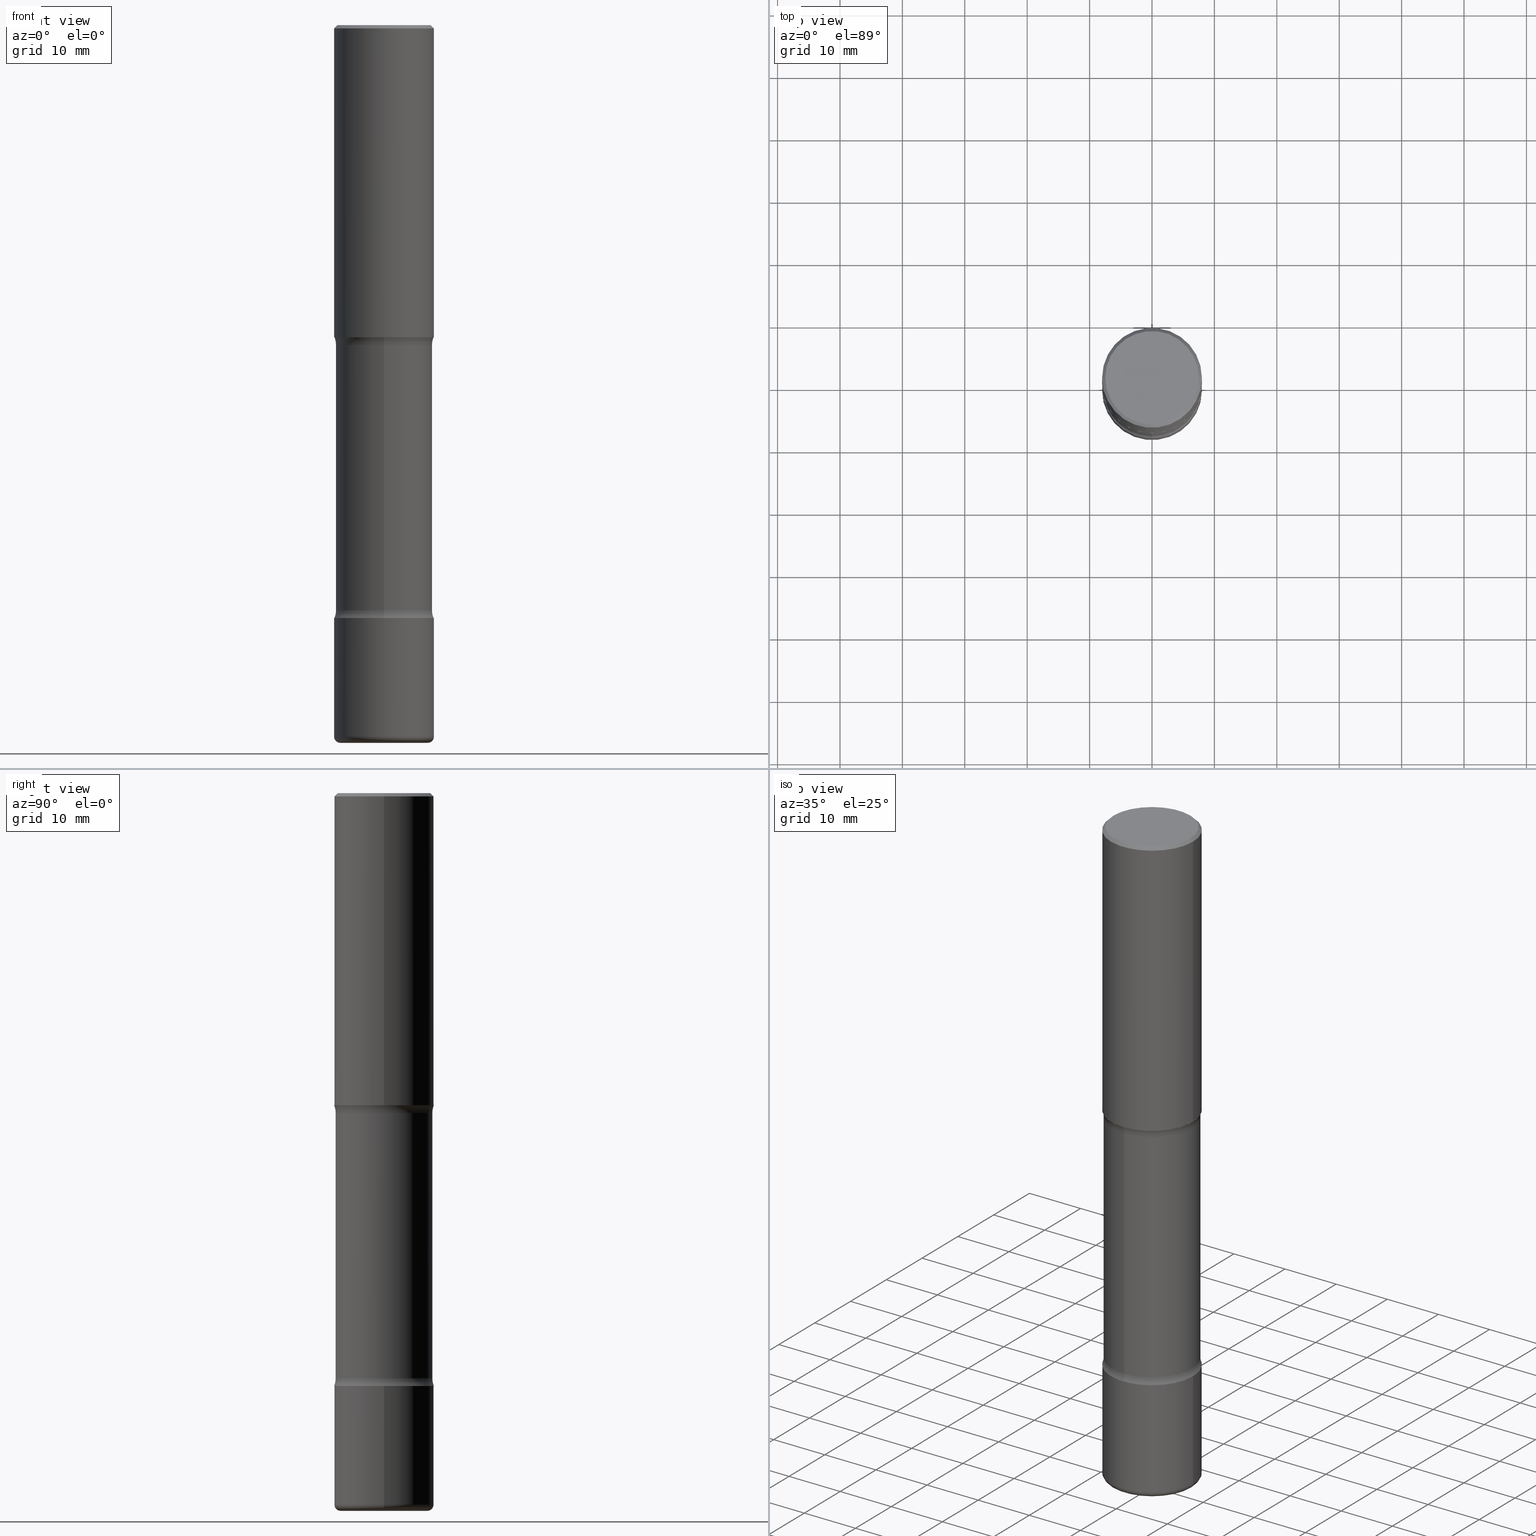
[diagram: canonical four-view strip — front | top / right | iso, engineering-drawing reading convention]
A machine part, canonical four-view strip (front | top / right | iso — engineering-drawing reading convention). The complete STEP part file that produces these views, byte-faithful:
ISO-10303-21;
HEADER;
FILE_DESCRIPTION (( 'STEP AP203' ),
    '1' );
FILE_NAME ('46830.STEP',
    '2024-03-02T05:39:50',
    ( '' ),
    ( '' ),
    'SwSTEP 2.0',
    'SolidWorks 2023',
    '' );
FILE_SCHEMA (( 'CONFIG_CONTROL_DESIGN' ));
ENDSEC;

DATA;
#1 = AXIS2_PLACEMENT_3D ( 'NONE', #250, #40, #155 ) ;
#2 = DIMENSIONAL_EXPONENTS ( 1.000000000000000000, 0.000000000000000000, 0.000000000000000000, 0.000000000000000000, 0.000000000000000000, 0.000000000000000000, 0.000000000000000000 ) ;
#3 = CC_DESIGN_DATE_AND_TIME_ASSIGNMENT ( #532, #485, ( #24 ) ) ;
#4 = DIRECTION ( 'NONE',  ( 6.982962677686265922E-15, 1.000000000000000000, -3.400504350852260021E-15 ) ) ;
#5 = CC_DESIGN_DATE_AND_TIME_ASSIGNMENT ( #7, #85, ( #306 ) ) ;
#6 = EDGE_CURVE ( 'NONE', #537, #237, #458, .T. ) ;
#7 = DATE_AND_TIME ( #89, #422 ) ;
#8 = APPROVAL_PERSON_ORGANIZATION ( #317, #388, #312 ) ;
#9 = FACE_OUTER_BOUND ( 'NONE', #151, .T. ) ;
#10 = EDGE_LOOP ( 'NONE', ( #78, #230, #474, #191 ) ) ;
#11 = APPROVAL_DATE_TIME ( #145, #80 ) ;
#12 = ORIENTED_EDGE ( 'NONE', *, *, #153, .T. ) ;
#13 = ORIENTED_EDGE ( 'NONE', *, *, #6, .T. ) ;
#14 = DIRECTION ( 'NONE',  ( 0.000000000000000000, 0.000000000000000000, 1.000000000000000000 ) ) ;
#15 = CARTESIAN_POINT ( 'NONE',  ( 0.3149499999999998967, -2.230543471175006266E-15, -0.02000000000000006981 ) ) ;
#16 = MECHANICAL_CONTEXT ( 'NONE', #326, 'mechanical' ) ;
#17 = CIRCLE ( 'NONE', #523, 0.2755500000000001837 ) ;
#18 = AXIS2_PLACEMENT_3D ( 'NONE', #327, #142, #297 ) ;
#19 = ORIENTED_EDGE ( 'NONE', *, *, #295, .T. ) ;
#20 = PRODUCT_DEFINITION_SHAPE ( 'NONE', 'NONE',  #24 ) ;
#21 = ORIENTED_EDGE ( 'NONE', *, *, #522, .F. ) ;
#22 = ORIENTED_EDGE ( 'NONE', *, *, #305, .F. ) ;
#23 = CARTESIAN_POINT ( 'NONE',  ( -2.160713844398098792E-15, -0.3149500000000073907, -1.968499999999999028 ) ) ;
#24 = PRODUCT_DEFINITION ( 'UNKNOWN', '', #432, #245 ) ;
#25 = ORIENTED_EDGE ( 'NONE', *, *, #141, .T. ) ;
#26 = AXIS2_PLACEMENT_3D ( 'NONE', #68, #425, #70 ) ;
#27 = AXIS2_PLACEMENT_3D ( 'NONE', #401, #135, #350 ) ;
#28 = FACE_OUTER_BOUND ( 'NONE', #456, .T. ) ;
#29 = FACE_OUTER_BOUND ( 'NONE', #459, .T. ) ;
#30 = VERTEX_POINT ( 'NONE', #450 ) ;
#31 = DIRECTION ( 'NONE',  ( 1.000000000000000000, -6.982962677686264344E-15, 0.000000000000000000 ) ) ;
#32 = CARTESIAN_POINT ( 'NONE',  ( -0.3149500000000000632, -1.343261219871936869E-14, -4.488199999999999967 ) ) ;
#33 = AXIS2_PLACEMENT_3D ( 'NONE', #338, #427, #391 ) ;
#34 = AXIS2_PLACEMENT_3D ( 'NONE', #467, #299, #251 ) ;
#35 = EDGE_CURVE ( 'NONE', #313, #215, #45, .T. ) ;
#36 = DIRECTION ( 'NONE',  ( -2.445468806185136597E-29, 3.491481338843145583E-15, 1.000000000000000000 ) ) ;
#37 = CIRCLE ( 'NONE', #504, 0.3149499999999998967 ) ;
#38 = FACE_OUTER_BOUND ( 'NONE', #394, .T. ) ;
#39 = ORIENTED_EDGE ( 'NONE', *, *, #480, .F. ) ;
#40 = DIRECTION ( 'NONE',  ( -2.445468806185136597E-29, 3.491481338843145583E-15, 1.000000000000000000 ) ) ;
#41 = LINE ( 'NONE', #393, #361 ) ;
#42 = VERTEX_POINT ( 'NONE', #60 ) ;
#43 = APPROVAL_STATUS ( 'not_yet_approved' ) ;
#44 = ADVANCED_FACE ( 'NONE', ( #239 ), #551, .F. ) ;
#45 = CIRCLE ( 'NONE', #112, 0.3149500000000003408 ) ;
#46 = DIRECTION ( 'NONE',  ( 1.000000000000000000, -6.982962677686269866E-15, 0.000000000000000000 ) ) ;
#47 = TOROIDAL_SURFACE ( 'NONE', #369, 0.4300000000000000488, 0.1250000000000000278 ) ;
#48 = DIRECTION ( 'NONE',  ( 1.000000000000000000, -6.982962677686263555E-15, 4.883557194083111780E-29 ) ) ;
#49 = EDGE_CURVE ( 'NONE', #537, #215, #143, .T. ) ;
#50 = FACE_OUTER_BOUND ( 'NONE', #168, .T. ) ;
#51 = CIRCLE ( 'NONE', #316, 0.3149500000000002298 ) ;
#52 = DIRECTION ( 'NONE',  ( 2.508997697352003204E-29, -3.400504350852260021E-15, -1.000000000000000000 ) ) ;
#53 =( NAMED_UNIT ( * ) PLANE_ANGLE_UNIT ( ) SI_UNIT ( $, .RADIAN. ) );
#54 = CALENDAR_DATE ( 2024, 2, 3 ) ;
#55 = CARTESIAN_POINT ( 'NONE',  ( 4.838038961945526824E-29, -7.180209988345925109E-15, -2.017372256956274423 ) ) ;
#56 = DIRECTION ( 'NONE',  ( 2.508997697352003204E-29, -3.400504350852260021E-15, -1.000000000000000000 ) ) ;
#57 = ORIENTED_EDGE ( 'NONE', *, *, #368, .T. ) ;
#58 = CIRCLE ( 'NONE', #452, 0.1250000000000000278 ) ;
#59 = TOROIDAL_SURFACE ( 'NONE', #484, 0.4299999999999999378, 0.1250000000000000000 ) ;
#60 = CARTESIAN_POINT ( 'NONE',  ( -0.2949499999999998234, 2.094539655171994135E-15, 1.280553747028670770E-17 ) ) ;
#61 = DIRECTION ( 'NONE',  ( -2.445468806185136597E-29, 3.491481338843145583E-15, 1.000000000000000000 ) ) ;
#62 = CARTESIAN_POINT ( 'NONE',  ( 1.107210456688382298E-28, -1.580803090974622389E-14, -4.527599999999999625 ) ) ;
#63 = VERTEX_POINT ( 'NONE', #335 ) ;
#64 = AXIS2_PLACEMENT_3D ( 'NONE', #240, #244, #417 ) ;
#65 = CC_DESIGN_SECURITY_CLASSIFICATION ( #306, ( #432 ) ) ;
#66 = ORIENTED_EDGE ( 'NONE', *, *, #201, .F. ) ;
#67 = PLANE ( 'NONE',  #438 ) ;
#68 = CARTESIAN_POINT ( 'NONE',  ( -0.2755500000000002392, -1.371256603660884731E-14, -4.488199999999999967 ) ) ;
#69 = CARTESIAN_POINT ( 'NONE',  ( 9.023922048725964423E-29, -1.289264818112535948E-14, -3.691327743043727239 ) ) ;
#70 = DIRECTION ( 'NONE',  ( -1.000000000000000000, 7.105427357601014480E-15, 0.000000000000000000 ) ) ;
#71 = DIRECTION ( 'NONE',  ( 2.508997697352003204E-29, -3.400504350852260021E-15, -1.000000000000000000 ) ) ;
#72 = VERTEX_POINT ( 'NONE', #15 ) ;
#73 = DIRECTION ( 'NONE',  ( -6.982962677686265922E-15, -1.000000000000000000, 3.400504350852260021E-15 ) ) ;
#74 = ADVANCED_FACE ( 'NONE', ( #535 ), #67, .F. ) ;
#75 = AXIS2_PLACEMENT_3D ( 'NONE', #248, #429, #510 ) ;
#76 = CIRCLE ( 'NONE', #403, 0.3149499999999998967 ) ;
#77 = CARTESIAN_POINT ( 'NONE',  ( 3.002673951405142333E-15, 0.4299999999999927769, -2.017372256956275756 ) ) ;
#78 = ORIENTED_EDGE ( 'NONE', *, *, #247, .F. ) ;
#79 = MANIFOLD_SOLID_BREP ( 'Body-Move/Copy2[1]', #488 ) ;
#80 = APPROVAL ( #277, 'UNSPECIFIED' ) ;
#81 = MANIFOLD_SOLID_BREP ( 'Body-Move/Copy2[2]', #290 ) ;
#82 = CARTESIAN_POINT ( 'NONE',  ( 2.059624841783562880E-15, 0.2949499999999998234, -1.023409652156634547E-15 ) ) ;
#83 = EDGE_LOOP ( 'NONE', ( #538, #496, #12, #99 ) ) ;
#84 = FACE_OUTER_BOUND ( 'NONE', #329, .T. ) ;
#85 = DATE_TIME_ROLE ( 'classification_date' ) ;
#86 = CIRCLE ( 'NONE', #159, 0.3149500000000001743 ) ;
#87 = EDGE_CURVE ( 'NONE', #92, #63, #179, .T. ) ;
#88 = LINE ( 'NONE', #266, #448 ) ;
#89 = CALENDAR_DATE ( 2024, 2, 3 ) ;
#90 = PERSON_AND_ORGANIZATION ( #323, #104 ) ;
#91 = APPROVAL_STATUS ( 'not_yet_approved' ) ;
#92 = VERTEX_POINT ( 'NONE', #214 ) ;
#93 = ADVANCED_FACE ( 'NONE', ( #29 ), #204, .T. ) ;
#94 = ADVANCED_FACE ( 'NONE', ( #38 ), #163, .T. ) ;
#95 = AXIS2_PLACEMENT_3D ( 'NONE', #55, #283, #232 ) ;
#96 = ORIENTED_EDGE ( 'NONE', *, *, #399, .F. ) ;
#97 = PERSON_AND_ORGANIZATION ( #323, #104 ) ;
#98 = APPROVAL ( #91, 'UNSPECIFIED' ) ;
#99 = ORIENTED_EDGE ( 'NONE', *, *, #35, .T. ) ;
#100 = PERSON_AND_ORGANIZATION ( #323, #104 ) ;
#101 = CARTESIAN_POINT ( 'NONE',  ( 4.701351208495103638E-29, -7.034164945136184012E-15, -1.968500000000000139 ) ) ;
#102 = CIRCLE ( 'NONE', #533, 0.3149500000000003408 ) ;
#103 = DIRECTION ( 'NONE',  ( 6.982962677686265922E-15, 1.000000000000000000, -3.469564049740289220E-15 ) ) ;
#104 = ORGANIZATION ( 'UNSPECIFIED', 'UNSPECIFIED', '' ) ;
#105 = LOCAL_TIME ( 0, 39, 50.00000000000000000, #140 ) ;
#106 = ORIENTED_EDGE ( 'NONE', *, *, #247, .T. ) ;
#107 = CARTESIAN_POINT ( 'NONE',  ( -0.2755500000000001837, -1.364137130003931840E-14, -4.527599999999999625 ) ) ;
#108 = DIRECTION ( 'NONE',  ( 1.000000000000000000, -6.860497997771530774E-15, 4.841913026395534193E-29 ) ) ;
#109 = ORIENTED_EDGE ( 'NONE', *, *, #286, .T. ) ;
#110 = DIRECTION ( 'NONE',  ( 1.000000000000000000, -6.982962677686265922E-15, 4.876176775795935232E-29 ) ) ;
#111 = VERTEX_POINT ( 'NONE', #292 ) ;
#112 = AXIS2_PLACEMENT_3D ( 'NONE', #101, #372, #103 ) ;
#113 = AXIS2_PLACEMENT_3D ( 'NONE', #454, #332, #411 ) ;
#114 = CIRCLE ( 'NONE', #228, 0.3149500000000001743 ) ;
#115 = CARTESIAN_POINT ( 'NONE',  ( 0.000000000000000000, 0.000000000000000000, 0.000000000000000000 ) ) ;
#116 = DIRECTION ( 'NONE',  ( 1.000000000000000000, -6.982962677686272233E-15, 0.000000000000000000 ) ) ;
#117 = DIRECTION ( 'NONE',  ( 2.508997697352003204E-29, -3.400504350852260021E-15, -1.000000000000000000 ) ) ;
#118 = DIRECTION ( 'NONE',  ( 2.508997697352003204E-29, -3.400504350852260021E-15, -1.000000000000000000 ) ) ;
#119 = DIRECTION ( 'NONE',  ( -0.7071067811865471286, 2.468850131082252722E-15, -0.7071067811865479058 ) ) ;
#120 = ORIENTED_EDGE ( 'NONE', *, *, #182, .F. ) ;
#121 = AXIS2_PLACEMENT_3D ( 'NONE', #433, #507, #559 ) ;
#122 = DIRECTION ( 'NONE',  ( 6.982962677686264344E-15, 1.000000000000000000, -3.469564049740290403E-15 ) ) ;
#123 = ORIENTED_EDGE ( 'NONE', *, *, #298, .F. ) ;
#124 = CARTESIAN_POINT ( 'NONE',  ( 4.838038961945526824E-29, -7.180209988345925109E-15, -2.017372256956274423 ) ) ;
#125 = CARTESIAN_POINT ( 'NONE',  ( 1.734104124256122727E-28, -6.830556784459118398E-15, -4.527600000000000513 ) ) ;
#126 = CARTESIAN_POINT ( 'NONE',  ( 4.813905344975441835E-29, -6.872981015512731707E-15, -1.968500000000000139 ) ) ;
#127 = LINE ( 'NONE', #130, #344 ) ;
#128 = EDGE_CURVE ( 'NONE', #215, #313, #102, .T. ) ;
#129 = DIRECTION ( 'NONE',  ( 6.982962677686266711E-15, 1.000000000000000000, -3.582751467100674095E-15 ) ) ;
#130 = CARTESIAN_POINT ( 'NONE',  ( 0.3149499999999998967, -2.230543471175006266E-15, -0.02000000000000006981 ) ) ;
#131 = VECTOR ( 'NONE', #56, 39.37007874015748143 ) ;
#132 = SHAPE_DEFINITION_REPRESENTATION ( #20, #519 ) ;
#133 = EDGE_CURVE ( 'NONE', #324, #42, #189, .T. ) ;
#134 = ORIENTED_EDGE ( 'NONE', *, *, #182, .T. ) ;
#135 = DIRECTION ( 'NONE',  ( 2.508997697352003204E-29, -3.400504350852260021E-15, -1.000000000000000000 ) ) ;
#136 = FACE_OUTER_BOUND ( 'NONE', #541, .T. ) ;
#137 = EDGE_CURVE ( 'NONE', #42, #451, #302, .T. ) ;
#138 = DIRECTION ( 'NONE',  ( 2.438088387897960049E-29, -3.491481338843145188E-15, -1.000000000000000000 ) ) ;
#139 = ORIENTED_EDGE ( 'NONE', *, *, #201, .T. ) ;
#140 = COORDINATED_UNIVERSAL_TIME_OFFSET ( 5, 0, .BEHIND. ) ;
#141 = EDGE_CURVE ( 'NONE', #352, #505, #243, .T. ) ;
#142 = DIRECTION ( 'NONE',  ( 2.438088387897960049E-29, -3.491481338843145188E-15, -1.000000000000000000 ) ) ;
#143 = CIRCLE ( 'NONE', #113, 0.1250000000000000000 ) ;
#144 = VERTEX_POINT ( 'NONE', #32 ) ;
#145 = DATE_AND_TIME ( #54, #254 ) ;
#146 = FACE_OUTER_BOUND ( 'NONE', #406, .T. ) ;
#147 = CARTESIAN_POINT ( 'NONE',  ( -2.092451889320205392E-15, -0.3050000000000157030, -4.527599999999998737 ) ) ;
#148 = VECTOR ( 'NONE', #553, 39.37007874015748143 ) ;
#149 = ORIENTED_EDGE ( 'NONE', *, *, #6, .F. ) ;
#150 = DIRECTION ( 'NONE',  ( 6.982962677686265922E-15, 1.000000000000000000, -3.400504350852260021E-15 ) ) ;
#151 = EDGE_LOOP ( 'NONE', ( #341, #193 ) ) ;
#152 = ORIENTED_EDGE ( 'NONE', *, *, #298, .T. ) ;
#153 = EDGE_CURVE ( 'NONE', #468, #313, #281, .T. ) ;
#154 = DIRECTION ( 'NONE',  ( 6.982962677686266711E-15, 1.000000000000000000, -3.582751467100674095E-15 ) ) ;
#155 = DIRECTION ( 'NONE',  ( 1.000000000000000000, -6.982962677686263555E-15, 4.883557194083111780E-29 ) ) ;
#156 = DIRECTION ( 'NONE',  ( -1.000000000000000000, 6.982962677686265922E-15, -4.876176775795935793E-29 ) ) ;
#157 = PLANE ( 'NONE',  #395 ) ;
#158 = CARTESIAN_POINT ( 'NONE',  ( 1.107210456688382298E-28, -1.580803090974622389E-14, -4.527599999999999625 ) ) ;
#159 = AXIS2_PLACEMENT_3D ( 'NONE', #381, #36, #116 ) ;
#160 = CIRCLE ( 'NONE', #181, 0.3149500000000001743 ) ;
#161 = FACE_OUTER_BOUND ( 'NONE', #529, .T. ) ;
#162 = EDGE_CURVE ( 'NONE', #144, #92, #41, .T. ) ;
#163 = CYLINDRICAL_SURFACE ( 'NONE', #33, 0.3149500000000000077 ) ;
#164 = CARTESIAN_POINT ( 'NONE',  ( -2.126582866859184041E-15, -0.3050000000000072098, -2.017372256956273535 ) ) ;
#165 = ADVANCED_FACE ( 'NONE', ( #136 ), #342, .T. ) ;
#166 = CARTESIAN_POINT ( 'NONE',  ( 0.2949499999999998234, -2.127023677808859286E-15, 1.280553747031587399E-17 ) ) ;
#167 = CARTESIAN_POINT ( 'NONE',  ( 4.701351208495103638E-29, -7.034164945136184012E-15, -1.968500000000000139 ) ) ;
#168 = EDGE_LOOP ( 'NONE', ( #436, #558 ) ) ;
#169 = DIRECTION ( 'NONE',  ( -2.445468806185136877E-29, 3.491481338843145188E-15, 1.000000000000000000 ) ) ;
#170 = ORIENTED_EDGE ( 'NONE', *, *, #310, .T. ) ;
#171 = PRODUCT_RELATED_PRODUCT_CATEGORY ( 'detail', '', ( #373 ) ) ;
#172 = CARTESIAN_POINT ( 'NONE',  ( 4.823971588662791399E-29, -7.200355267551965208E-15, -2.017372256956274423 ) ) ;
#173 = TOROIDAL_SURFACE ( 'NONE', #1, 0.2755500000000002392, 0.03939999999999975466 ) ;
#174 = ADVANCED_FACE ( 'NONE', ( #476 ), #173, .T. ) ;
#175 = DIRECTION ( 'NONE',  ( 1.000000000000000000, -6.982962677686265922E-15, 4.876176775795935232E-29 ) ) ;
#176 = DIRECTION ( 'NONE',  ( 2.445468806185136597E-29, -3.491481338843145583E-15, -1.000000000000000000 ) ) ;
#177 = CARTESIAN_POINT ( 'NONE',  ( 4.823971588662791399E-29, -7.200355267551965208E-15, -2.017372256956274423 ) ) ;
#178 = LENGTH_MEASURE_WITH_UNIT ( LENGTH_MEASURE( 0.02539999999999999897 ), #410 );
#179 = CIRCLE ( 'NONE', #34, 0.3149500000000002298 ) ;
#180 = DIRECTION ( 'NONE',  ( 2.508997697352003204E-29, -3.400504350852260021E-15, -1.000000000000000000 ) ) ;
#181 = AXIS2_PLACEMENT_3D ( 'NONE', #126, #400, #555 ) ;
#182 = EDGE_CURVE ( 'NONE', #468, #275, #242, .T. ) ;
#183 = DIRECTION ( 'NONE',  ( -2.445468806185136597E-29, 3.491481338843145583E-15, 1.000000000000000000 ) ) ;
#184 = CALENDAR_DATE ( 2024, 2, 3 ) ;
#185 = EDGE_CURVE ( 'NONE', #352, #252, #264, .T. ) ;
#186 = ORIENTED_EDGE ( 'NONE', *, *, #480, .T. ) ;
#187 = EDGE_LOOP ( 'NONE', ( #434, #280, #186, #560 ) ) ;
#188 = PERSON_AND_ORGANIZATION ( #323, #104 ) ;
#189 = CIRCLE ( 'NONE', #420, 0.2949499999999998234 ) ;
#190 = AXIS2_PLACEMENT_3D ( 'NONE', #397, #261, #46 ) ;
#191 = ORIENTED_EDGE ( 'NONE', *, *, #492, .F. ) ;
#192 = ADVANCED_FACE ( 'NONE', ( #202 ), #380, .T. ) ;
#193 = ORIENTED_EDGE ( 'NONE', *, *, #289, .F. ) ;
#194 = EDGE_CURVE ( 'NONE', #505, #144, #322, .T. ) ;
#195 = CARTESIAN_POINT ( 'NONE',  ( 9.146542428893650504E-29, -1.305883850354113594E-14, -3.740200000000000635 ) ) ;
#196 = AXIS2_PLACEMENT_3D ( 'NONE', #440, #220, #48 ) ;
#197 = DIRECTION ( 'NONE',  ( 2.508997697352003204E-29, -3.400504350852260021E-15, -1.000000000000000000 ) ) ;
#198 = ORIENTED_EDGE ( 'NONE', *, *, #286, .F. ) ;
#199 = APPROVAL_PERSON_ORGANIZATION ( #90, #80, #269 ) ;
#200 = DIRECTION ( 'NONE',  ( 1.000000000000000000, -6.982962677686265922E-15, 4.876176775795935793E-29 ) ) ;
#201 = EDGE_CURVE ( 'NONE', #392, #275, #431, .T. ) ;
#202 = FACE_OUTER_BOUND ( 'NONE', #10, .T. ) ;
#203 = LINE ( 'NONE', #455, #217 ) ;
#204 = CYLINDRICAL_SURFACE ( 'NONE', #121, 0.3049999999999999378 ) ;
#205 = EDGE_LOOP ( 'NONE', ( #19, #303, #349, #198 ) ) ;
#206 = CARTESIAN_POINT ( 'NONE',  ( 2.199284095337339175E-15, 0.3149499999999932909, -1.968500000000001249 ) ) ;
#207 = ORIENTED_EDGE ( 'NONE', *, *, #49, .T. ) ;
#208 = CIRCLE ( 'NONE', #539, 0.3049999999999998823 ) ;
#209 = AXIS2_PLACEMENT_3D ( 'NONE', #489, #14, #445 ) ;
#210 = CARTESIAN_POINT ( 'NONE',  ( 9.027026849019219293E-29, -1.288820193039116093E-14, -3.691327743043727239 ) ) ;
#211 = ORIENTED_EDGE ( 'NONE', *, *, #295, .F. ) ;
#212 = CARTESIAN_POINT ( 'NONE',  ( 4.615694768568605168E-29, -1.954727023296045315E-14, -3.740200000000000635 ) ) ;
#213 = PERSON_AND_ORGANIZATION_ROLE ( 'classification_officer' ) ;
#214 = CARTESIAN_POINT ( 'NONE',  ( -0.3149500000000002298, -1.212679817799203354E-14, -3.740200000000000635 ) ) ;
#215 = VERTEX_POINT ( 'NONE', #23 ) ;
#216 = ADVANCED_FACE ( 'NONE', ( #249 ), #502, .T. ) ;
#217 = VECTOR ( 'NONE', #345, 39.37007874015748143 ) ;
#218 = CIRCLE ( 'NONE', #190, 0.3149500000000001743 ) ;
#219 = CARTESIAN_POINT ( 'NONE',  ( 4.890937612370289799E-31, -6.982962677686315028E-17, -0.02000000000000006981 ) ) ;
#220 = DIRECTION ( 'NONE',  ( -2.445468806185136597E-29, 3.491481338843145583E-15, 1.000000000000000000 ) ) ;
#221 = CC_DESIGN_PERSON_AND_ORGANIZATION_ASSIGNMENT ( #351, #213, ( #306 ) ) ;
#222 = CARTESIAN_POINT ( 'NONE',  ( 2.199284095337382168E-15, 0.3149499999999870181, -3.740200000000001967 ) ) ;
#223 = SECURITY_CLASSIFICATION_LEVEL ( 'unclassified' ) ;
#224 = APPLICATION_PROTOCOL_DEFINITION ( 'international standard', 'config_control_design', 1994, #384 ) ;
#225 = ADVANCED_FACE ( 'NONE', ( #28 ), #47, .F. ) ;
#226 = CIRCLE ( 'NONE', #304, 0.3049999999999998823 ) ;
#227 = CC_DESIGN_PERSON_AND_ORGANIZATION_ASSIGNMENT ( #188, #318, ( #373 ) ) ;
#228 = AXIS2_PLACEMENT_3D ( 'NONE', #270, #518, #526 ) ;
#229 = APPROVAL_ROLE ( '' ) ;
#230 = ORIENTED_EDGE ( 'NONE', *, *, #473, .T. ) ;
#231 =( CONVERSION_BASED_UNIT ( 'INCH', #178 ) LENGTH_UNIT ( ) NAMED_UNIT ( #2 ) );
#232 = DIRECTION ( 'NONE',  ( 6.982962677686265922E-15, 1.000000000000000000, -3.400504350852260021E-15 ) ) ;
#233 = APPLICATION_PROTOCOL_DEFINITION ( 'international standard', 'config_control_design', 1994, #326 ) ;
#234 = ADVANCED_FACE ( 'NONE', ( #543 ), #157, .F. ) ;
#235 = AXIS2_PLACEMENT_3D ( 'NONE', #158, #343, #471 ) ;
#236 = CONICAL_SURFACE ( 'NONE', #370, 0.3149499999999998967, 0.7853981633974477239 ) ;
#237 = VERTEX_POINT ( 'NONE', #296 ) ;
#238 = EDGE_CURVE ( 'NONE', #63, #92, #460, .T. ) ;
#239 = FACE_OUTER_BOUND ( 'NONE', #442, .T. ) ;
#240 = CARTESIAN_POINT ( 'NONE',  ( 4.890937612370289799E-31, -6.982962677686315028E-17, -0.02000000000000006981 ) ) ;
#241 = DIRECTION ( 'NONE',  ( 1.000000000000000000, -6.982962677686271444E-15, 0.000000000000000000 ) ) ;
#242 = LINE ( 'NONE', #279, #131 ) ;
#243 = CIRCLE ( 'NONE', #235, 0.2755500000000001837 ) ;
#244 = DIRECTION ( 'NONE',  ( 2.445468806185136597E-29, -3.491481338843145583E-15, -1.000000000000000000 ) ) ;
#245 = DESIGN_CONTEXT ( 'detailed design', #384, 'design' ) ;
#246 = CARTESIAN_POINT ( 'NONE',  ( -2.950014139041668531E-15, -0.4300000000000129829, -3.691327743043725906 ) ) ;
#247 = EDGE_CURVE ( 'NONE', #111, #451, #203, .T. ) ;
#248 = CARTESIAN_POINT ( 'NONE',  ( 3.002673951405185326E-15, 0.4299999999999871703, -3.691327743043729015 ) ) ;
#249 = FACE_OUTER_BOUND ( 'NONE', #187, .T. ) ;
#250 = CARTESIAN_POINT ( 'NONE',  ( 1.097575309592012950E-28, -1.567046654499580468E-14, -4.488199999999999967 ) ) ;
#251 = DIRECTION ( 'NONE',  ( 1.000000000000000000, -6.982962677686264344E-15, 0.000000000000000000 ) ) ;
#252 = VERTEX_POINT ( 'NONE', #389 ) ;
#253 = AXIS2_PLACEMENT_3D ( 'NONE', #444, #419, #336 ) ;
#254 = LOCAL_TIME ( 0, 39, 50.00000000000000000, #443 ) ;
#255 = DIRECTION ( 'NONE',  ( -1.000000000000000000, 6.982962677686265922E-15, -4.883557194083112340E-29 ) ) ;
#256 = ORIENTED_EDGE ( 'NONE', *, *, #259, .T. ) ;
#257 = DIRECTION ( 'NONE',  ( 2.508997697352003204E-29, -3.400504350852260021E-15, -1.000000000000000000 ) ) ;
#258 = FACE_OUTER_BOUND ( 'NONE', #83, .T. ) ;
#259 = EDGE_CURVE ( 'NONE', #42, #324, #413, .T. ) ;
#260 = ORIENTED_EDGE ( 'NONE', *, *, #399, .T. ) ;
#261 = DIRECTION ( 'NONE',  ( -2.445468806185136597E-29, 3.491481338843145583E-15, 1.000000000000000000 ) ) ;
#262 = PERSON_AND_ORGANIZATION_ROLE ( 'design_supplier' ) ;
#263 = CC_DESIGN_PERSON_AND_ORGANIZATION_ASSIGNMENT ( #100, #262, ( #432 ) ) ;
#264 = CIRCLE ( 'NONE', #253, 0.03939999999999978936 ) ;
#265 = AXIS2_PLACEMENT_3D ( 'NONE', #172, #257, #354 ) ;
#266 = CARTESIAN_POINT ( 'NONE',  ( 0.3149500000000000077, -2.199284095337289871E-15, 1.535751875536930130E-29 ) ) ;
#267 = DATE_AND_TIME ( #479, #293 ) ;
#268 = ADVANCED_FACE ( 'NONE', ( #161 ), #503, .T. ) ;
#269 = APPROVAL_ROLE ( '' ) ;
#270 = CARTESIAN_POINT ( 'NONE',  ( 1.097575309592012950E-28, -1.567046654499580468E-14, -4.488199999999999967 ) ) ;
#271 = CARTESIAN_POINT ( 'NONE',  ( 0.000000000000000000, 0.000000000000000000, 0.000000000000000000 ) ) ;
#272 = ORIENTED_EDGE ( 'NONE', *, *, #473, .F. ) ;
#273 = PERSON_AND_ORGANIZATION_ROLE ( 'creator' ) ;
#274 = MANIFOLD_SOLID_BREP ( 'Body-Move/Copy2[4]', #530 ) ;
#275 = VERTEX_POINT ( 'NONE', #426 ) ;
#276 = TOROIDAL_SURFACE ( 'NONE', #27, 0.4300000000000000488, 0.1250000000000000278 ) ;
#277 = APPROVAL_STATUS ( 'not_yet_approved' ) ;
#278 = ORIENTED_EDGE ( 'NONE', *, *, #185, .F. ) ;
#279 = CARTESIAN_POINT ( 'NONE',  ( 2.129803616694422103E-15, 0.3049999999999842282, -4.527600000000001401 ) ) ;
#280 = ORIENTED_EDGE ( 'NONE', *, *, #404, .T. ) ;
#281 = CIRCLE ( 'NONE', #552, 0.1250000000000000000 ) ;
#282 = AXIS2_PLACEMENT_3D ( 'NONE', #271, #183, #175 ) ;
#283 = DIRECTION ( 'NONE',  ( 2.508997697352003204E-29, -3.400504350852260021E-15, -1.000000000000000000 ) ) ;
#284 = DIRECTION ( 'NONE',  ( 1.000000000000000000, -6.982962677686267499E-15, 4.876053491004737710E-29 ) ) ;
#285 = ORIENTED_EDGE ( 'NONE', *, *, #536, .F. ) ;
#286 = EDGE_CURVE ( 'NONE', #252, #63, #501, .T. ) ;
#287 = ORIENTED_EDGE ( 'NONE', *, *, #320, .T. ) ;
#288 = FACE_OUTER_BOUND ( 'NONE', #494, .T. ) ;
#289 = EDGE_CURVE ( 'NONE', #505, #352, #17, .T. ) ;
#290 = CLOSED_SHELL ( 'NONE', ( #94, #216, #527, #74, #234, #192 ) ) ;
#291 = VECTOR ( 'NONE', #119, 39.37007874015748143 ) ;
#292 = CARTESIAN_POINT ( 'NONE',  ( -0.3149500000000001743, -1.233550974868359743E-15, -1.968500000000000139 ) ) ;
#293 = LOCAL_TIME ( 0, 39, 50.00000000000000000, #398 ) ;
#294 = DIRECTION ( 'NONE',  ( -2.445468806185136597E-29, 3.491481338843145583E-15, 1.000000000000000000 ) ) ;
#295 = EDGE_CURVE ( 'NONE', #252, #144, #86, .T. ) ;
#296 = CARTESIAN_POINT ( 'NONE',  ( -2.126582866859139076E-15, -0.3050000000000128164, -3.691327743043726350 ) ) ;
#297 = DIRECTION ( 'NONE',  ( -1.000000000000000000, 6.982962677686265922E-15, -4.876176775795935793E-29 ) ) ;
#298 = EDGE_CURVE ( 'NONE', #511, #392, #470, .T. ) ;
#299 = DIRECTION ( 'NONE',  ( -2.445468806185136597E-29, 3.491481338843145583E-15, 1.000000000000000000 ) ) ;
#300 = DIRECTION ( 'NONE',  ( 2.508997697352003204E-29, -3.400504350852260021E-15, -1.000000000000000000 ) ) ;
#301 = COORDINATED_UNIVERSAL_TIME_OFFSET ( 5, 0, .BEHIND. ) ;
#302 = LINE ( 'NONE', #512, #291 ) ;
#303 = ORIENTED_EDGE ( 'NONE', *, *, #162, .T. ) ;
#304 = AXIS2_PLACEMENT_3D ( 'NONE', #69, #540, #154 ) ;
#305 = EDGE_CURVE ( 'NONE', #275, #237, #226, .T. ) ;
#306 = SECURITY_CLASSIFICATION ( '', '', #223 ) ;
#307 = DIRECTION ( 'NONE',  ( 0.7071067811865471286, -7.319954787623254468E-15, -0.7071067811865479058 ) ) ;
#308 = ORIENTED_EDGE ( 'NONE', *, *, #536, .T. ) ;
#309 = CARTESIAN_POINT ( 'NONE',  ( -2.160713844398053432E-15, -0.3149500000000131639, -3.740199999999999747 ) ) ;
#310 = EDGE_CURVE ( 'NONE', #511, #237, #58, .T. ) ;
#311 = CARTESIAN_POINT ( 'NONE',  ( 4.813905344975441835E-29, -6.872981015512731707E-15, -1.968500000000000139 ) ) ;
#312 = APPROVAL_ROLE ( '' ) ;
#313 = VERTEX_POINT ( 'NONE', #206 ) ;
#314 = DIRECTION ( 'NONE',  ( -2.445468806185136597E-29, 3.491481338843145583E-15, 1.000000000000000000 ) ) ;
#315 = AXIS2_PLACEMENT_3D ( 'NONE', #424, #61, #110 ) ;
#316 = AXIS2_PLACEMENT_3D ( 'NONE', #521, #486, #122 ) ;
#317 = PERSON_AND_ORGANIZATION ( #323, #104 ) ;
#318 = PERSON_AND_ORGANIZATION_ROLE ( 'design_owner' ) ;
#319 = CARTESIAN_POINT ( 'NONE',  ( 2.129803616694359388E-15, 0.3049999999999927769, -2.017372256956275756 ) ) ;
#320 = EDGE_CURVE ( 'NONE', #237, #275, #208, .T. ) ;
#321 = ORIENTED_EDGE ( 'NONE', *, *, #428, .F. ) ;
#322 = CIRCLE ( 'NONE', #26, 0.03939999999999978936 ) ;
#323 = PERSON ( 'UNSPECIFIED', 'UNSPECIFIED', 'UNSPECIFIED', ('UNSPECIFIED'), ('UNSPECIFIED'), ('UNSPECIFIED') ) ;
#324 = VERTEX_POINT ( 'NONE', #166 ) ;
#325 = PERSON_AND_ORGANIZATION_ROLE ( 'creator' ) ;
#326 = APPLICATION_CONTEXT ( 'configuration controlled 3d designs of mechanical parts and assemblies' ) ;
#327 = CARTESIAN_POINT ( 'NONE',  ( 4.615694768568605168E-29, -1.954727023296045315E-14, -3.740200000000000635 ) ) ;
#328 = ORIENTED_EDGE ( 'NONE', *, *, #194, .T. ) ;
#329 = EDGE_LOOP ( 'NONE', ( #517, #96, #139, #472 ) ) ;
#330 = AXIS2_PLACEMENT_3D ( 'NONE', #195, #506, #31 ) ;
#331 = CC_DESIGN_APPROVAL ( #388, ( #306 ) ) ;
#332 = DIRECTION ( 'NONE',  ( 1.000000000000000000, -6.860497997771530774E-15, 4.841913026395534193E-29 ) ) ;
#333 = ADVANCED_FACE ( 'NONE', ( #288 ), #385, .T. ) ;
#334 = DIRECTION ( 'NONE',  ( -2.445468806185136597E-29, 3.491481338843145583E-15, 1.000000000000000000 ) ) ;
#335 = CARTESIAN_POINT ( 'NONE',  ( 0.3149500000000002298, -1.525812259887842581E-14, -3.740200000000000635 ) ) ;
#336 = DIRECTION ( 'NONE',  ( 1.000000000000000000, -6.982962677686266711E-15, 0.000000000000000000 ) ) ;
#337 = CARTESIAN_POINT ( 'NONE',  ( 9.023922048725964423E-29, -1.289264818112535948E-14, -3.691327743043727239 ) ) ;
#338 = CARTESIAN_POINT ( 'NONE',  ( 0.000000000000000000, 0.000000000000000000, 0.000000000000000000 ) ) ;
#339 = ORIENTED_EDGE ( 'NONE', *, *, #492, .T. ) ;
#340 = ADVANCED_FACE ( 'NONE', ( #9 ), #387, .T. ) ;
#341 = ORIENTED_EDGE ( 'NONE', *, *, #141, .F. ) ;
#342 = TOROIDAL_SURFACE ( 'NONE', #196, 0.2755500000000002392, 0.03939999999999975466 ) ;
#343 = DIRECTION ( 'NONE',  ( -2.445468806185136597E-29, 3.491481338843145583E-15, 1.000000000000000000 ) ) ;
#344 = VECTOR ( 'NONE', #307, 39.37007874015748143 ) ;
#345 = DIRECTION ( 'NONE',  ( -2.445468806185136877E-29, 3.491481338843145188E-15, 1.000000000000000000 ) ) ;
#346 = FACE_OUTER_BOUND ( 'NONE', #415, .T. ) ;
#347 = CARTESIAN_POINT ( 'NONE',  ( 1.112212721578861617E-28, -1.573639562940220266E-14, -4.527600000000000513 ) ) ;
#348 = DIRECTION ( 'NONE',  ( -2.445468806185136597E-29, 3.491481338843145583E-15, 1.000000000000000000 ) ) ;
#349 = ORIENTED_EDGE ( 'NONE', *, *, #238, .F. ) ;
#350 = DIRECTION ( 'NONE',  ( 6.982962677686265922E-15, 1.000000000000000000, -3.400504350852260021E-15 ) ) ;
#351 = PERSON_AND_ORGANIZATION ( #323, #104 ) ;
#352 = VERTEX_POINT ( 'NONE', #556 ) ;
#353 = CIRCLE ( 'NONE', #355, 0.3049999999999999933 ) ;
#354 = DIRECTION ( 'NONE',  ( 6.982962677686266711E-15, 1.000000000000000000, -3.582751467100673306E-15 ) ) ;
#355 = AXIS2_PLACEMENT_3D ( 'NONE', #177, #52, #405 ) ;
#356 = ADVANCED_FACE ( 'NONE', ( #524 ), #364, .T. ) ;
#357 = PLANE ( 'NONE',  #495 ) ;
#358 = DIRECTION ( 'NONE',  ( -2.445468806185136597E-29, 3.491481338843145583E-15, 1.000000000000000000 ) ) ;
#359 = DIRECTION ( 'NONE',  ( -1.000000000000000000, 6.982962677686265922E-15, -4.876176775795935793E-29 ) ) ;
#360 =( NAMED_UNIT ( * ) SI_UNIT ( $, .STERADIAN. ) SOLID_ANGLE_UNIT ( ) );
#361 = VECTOR ( 'NONE', #169, 39.37007874015748143 ) ;
#362 =( GEOMETRIC_REPRESENTATION_CONTEXT ( 3 ) GLOBAL_UNCERTAINTY_ASSIGNED_CONTEXT ( ( #462 ) ) GLOBAL_UNIT_ASSIGNED_CONTEXT ( ( #231, #53, #360 ) ) REPRESENTATION_CONTEXT ( 'NONE', 'WORKASPACE' ) );
#363 = DIRECTION ( 'NONE',  ( 6.982962677686265922E-15, 1.000000000000000000, -3.400504350852260021E-15 ) ) ;
#364 = CYLINDRICAL_SURFACE ( 'NONE', #282, 0.3149500000000001743 ) ;
#365 = ORIENTED_EDGE ( 'NONE', *, *, #259, .F. ) ;
#366 = ORIENTED_EDGE ( 'NONE', *, *, #87, .F. ) ;
#367 = PERSON_AND_ORGANIZATION ( #323, #104 ) ;
#368 = EDGE_CURVE ( 'NONE', #468, #537, #353, .T. ) ;
#369 = AXIS2_PLACEMENT_3D ( 'NONE', #210, #71, #150 ) ;
#370 = AXIS2_PLACEMENT_3D ( 'NONE', #477, #176, #483 ) ;
#371 = EDGE_LOOP ( 'NONE', ( #256, #542 ) ) ;
#372 = DIRECTION ( 'NONE',  ( 2.508997697352003204E-29, -3.400504350852260021E-15, -1.000000000000000000 ) ) ;
#373 = PRODUCT ( '46830', '46830', '', ( #16 ) ) ;
#374 = ADVANCED_FACE ( 'NONE', ( #146 ), #453, .F. ) ;
#375 = ORIENTED_EDGE ( 'NONE', *, *, #194, .F. ) ;
#376 = AXIS2_PLACEMENT_3D ( 'NONE', #377, #334, #284 ) ;
#377 = CARTESIAN_POINT ( 'NONE',  ( -3.131554243005659264E-46, 4.471029511141341874E-32, 1.280553747030123384E-17 ) ) ;
#378 = ORIENTED_EDGE ( 'NONE', *, *, #162, .F. ) ;
#379 = DIRECTION ( 'NONE',  ( 6.982962677686266711E-15, 1.000000000000000000, -3.582751467100674095E-15 ) ) ;
#380 = CYLINDRICAL_SURFACE ( 'NONE', #490, 0.3149500000000000077 ) ;
#381 = CARTESIAN_POINT ( 'NONE',  ( 1.097575309592012950E-28, -1.567046654499580468E-14, -4.488199999999999967 ) ) ;
#382 = CARTESIAN_POINT ( 'NONE',  ( -3.131554243005659264E-46, 4.471029511141341874E-32, 1.280553747030123384E-17 ) ) ;
#383 = EDGE_LOOP ( 'NONE', ( #375, #544, #418, #321 ) ) ;
#384 = APPLICATION_CONTEXT ( 'configuration controlled 3d designs of mechanical parts and assemblies' ) ;
#385 = CYLINDRICAL_SURFACE ( 'NONE', #514, 0.3049999999999999378 ) ;
#386 = CIRCLE ( 'NONE', #265, 0.3049999999999999933 ) ;
#387 = PLANE ( 'NONE',  #447 ) ;
#388 = APPROVAL ( #43, 'UNSPECIFIED' ) ;
#389 = CARTESIAN_POINT ( 'NONE',  ( 0.3149500000000000632, -1.786975064033309928E-14, -4.488199999999999967 ) ) ;
#390 = ADVANCED_FACE ( 'NONE', ( #258 ), #59, .F. ) ;
#391 = DIRECTION ( 'NONE',  ( 1.000000000000000000, -6.982962677686266711E-15, 4.876176775795936353E-29 ) ) ;
#392 = VERTEX_POINT ( 'NONE', #222 ) ;
#393 = CARTESIAN_POINT ( 'NONE',  ( -0.3149500000000001743, 2.237854346276436774E-15, -1.549218606675783237E-29 ) ) ;
#394 = EDGE_LOOP ( 'NONE', ( #308, #106, #39, #491 ) ) ;
#395 = AXIS2_PLACEMENT_3D ( 'NONE', #466, #457, #200 ) ;
#396 = FACE_OUTER_BOUND ( 'NONE', #498, .T. ) ;
#397 = CARTESIAN_POINT ( 'NONE',  ( 4.813905344975441835E-29, -6.872981015512731707E-15, -1.968500000000000139 ) ) ;
#398 = COORDINATED_UNIVERSAL_TIME_OFFSET ( 5, 0, .BEHIND. ) ;
#399 = EDGE_CURVE ( 'NONE', #392, #511, #51, .T. ) ;
#400 = DIRECTION ( 'NONE',  ( -2.445468806185136597E-29, 3.491481338843145583E-15, 1.000000000000000000 ) ) ;
#401 = CARTESIAN_POINT ( 'NONE',  ( 9.027026849019219293E-29, -1.288820193039116093E-14, -3.691327743043727239 ) ) ;
#402 = COORDINATED_UNIVERSAL_TIME_OFFSET ( 5, 0, .BEHIND. ) ;
#403 = AXIS2_PLACEMENT_3D ( 'NONE', #219, #314, #513 ) ;
#404 = EDGE_CURVE ( 'NONE', #324, #72, #127, .T. ) ;
#405 = DIRECTION ( 'NONE',  ( 6.982962677686266711E-15, 1.000000000000000000, -3.582751467100673306E-15 ) ) ;
#406 = EDGE_LOOP ( 'NONE', ( #493, #446 ) ) ;
#407 = APPROVAL_DATE_TIME ( #449, #98 ) ;
#408 = ORIENTED_EDGE ( 'NONE', *, *, #137, .T. ) ;
#409 = ADVANCED_FACE ( 'NONE', ( #50 ), #357, .F. ) ;
#410 =( LENGTH_UNIT ( ) NAMED_UNIT ( * ) SI_UNIT ( $, .METRE. ) );
#411 = DIRECTION ( 'NONE',  ( 6.860497997771529985E-15, 1.000000000000000000, 0.000000000000000000 ) ) ;
#412 = CALENDAR_DATE ( 2024, 2, 3 ) ;
#413 = CIRCLE ( 'NONE', #376, 0.2949499999999998234 ) ;
#414 = ORIENTED_EDGE ( 'NONE', *, *, #153, .F. ) ;
#415 = EDGE_LOOP ( 'NONE', ( #260, #152 ) ) ;
#416 = ORIENTED_EDGE ( 'NONE', *, *, #428, .T. ) ;
#417 = DIRECTION ( 'NONE',  ( -1.000000000000000000, 6.982962677686265922E-15, 0.000000000000000000 ) ) ;
#418 = ORIENTED_EDGE ( 'NONE', *, *, #185, .T. ) ;
#419 = DIRECTION ( 'NONE',  ( -6.982962677686266711E-15, -1.000000000000000000, 3.491481338843145583E-15 ) ) ;
#420 = AXIS2_PLACEMENT_3D ( 'NONE', #382, #348, #548 ) ;
#421 = DIRECTION ( 'NONE',  ( 6.860497997771529985E-15, 1.000000000000000000, 0.000000000000000000 ) ) ;
#422 = LOCAL_TIME ( 0, 39, 50.00000000000000000, #301 ) ;
#423 = ORIENTED_EDGE ( 'NONE', *, *, #522, .T. ) ;
#424 = CARTESIAN_POINT ( 'NONE',  ( 0.000000000000000000, 0.000000000000000000, 0.000000000000000000 ) ) ;
#425 = DIRECTION ( 'NONE',  ( 7.105427357601001859E-15, 1.000000000000000000, -3.491481338843145583E-15 ) ) ;
#426 = CARTESIAN_POINT ( 'NONE',  ( 2.129803616694400804E-15, 0.3049999999999870037, -3.691327743043728571 ) ) ;
#427 = DIRECTION ( 'NONE',  ( -2.445468806185136597E-29, 3.491481338843145583E-15, 1.000000000000000000 ) ) ;
#428 = EDGE_CURVE ( 'NONE', #144, #252, #114, .T. ) ;
#429 = DIRECTION ( 'NONE',  ( -1.000000000000000000, 6.982962677686265922E-15, -4.883557194083112340E-29 ) ) ;
#430 = CARTESIAN_POINT ( 'NONE',  ( 0.3149500000000001743, -2.199284095337290660E-15, 1.535751875536930690E-29 ) ) ;
#431 = CIRCLE ( 'NONE', #75, 0.1250000000000000278 ) ;
#432 = PRODUCT_DEFINITION_FORMATION_WITH_SPECIFIED_SOURCE ( 'ANY', '', #373, .NOT_KNOWN. ) ;
#433 = CARTESIAN_POINT ( 'NONE',  ( 1.112212721578861617E-28, -1.573639562940220266E-14, -4.527600000000000513 ) ) ;
#434 = ORIENTED_EDGE ( 'NONE', *, *, #133, .F. ) ;
#435 = DIRECTION ( 'NONE',  ( -6.982962677686266711E-15, -1.000000000000000000, 0.000000000000000000 ) ) ;
#436 = ORIENTED_EDGE ( 'NONE', *, *, #35, .F. ) ;
#437 = CARTESIAN_POINT ( 'NONE',  ( -0.3149499999999998967, 2.129454468560425784E-15, -0.02000000000000006981 ) ) ;
#438 = AXIS2_PLACEMENT_3D ( 'NONE', #82, #545, #156 ) ;
#439 = CC_DESIGN_APPROVAL ( #98, ( #24 ) ) ;
#440 = CARTESIAN_POINT ( 'NONE',  ( 1.097575309592012950E-28, -1.567046654499580468E-14, -4.488199999999999967 ) ) ;
#441 = ADVANCED_FACE ( 'NONE', ( #84 ), #276, .F. ) ;
#442 = EDGE_LOOP ( 'NONE', ( #21, #207, #531, #414 ) ) ;
#443 = COORDINATED_UNIVERSAL_TIME_OFFSET ( 5, 0, .BEHIND. ) ;
#444 = CARTESIAN_POINT ( 'NONE',  ( 0.2755500000000002392, -1.759462191083225770E-14, -4.488199999999999967 ) ) ;
#445 = DIRECTION ( 'NONE',  ( 1.000000000000000000, 0.000000000000000000, 0.000000000000000000 ) ) ;
#446 = ORIENTED_EDGE ( 'NONE', *, *, #87, .T. ) ;
#447 = AXIS2_PLACEMENT_3D ( 'NONE', #125, #138, #359 ) ;
#448 = VECTOR ( 'NONE', #509, 39.37007874015748143 ) ;
#449 = DATE_AND_TIME ( #412, #105 ) ;
#450 = CARTESIAN_POINT ( 'NONE',  ( 0.3149500000000001743, -9.072265110850023156E-15, -1.968500000000000139 ) ) ;
#451 = VERTEX_POINT ( 'NONE', #437 ) ;
#452 = AXIS2_PLACEMENT_3D ( 'NONE', #246, #108, #421 ) ;
#453 = PLANE ( 'NONE',  #18 ) ;
#454 = CARTESIAN_POINT ( 'NONE',  ( -2.950014139041709158E-15, -0.4300000000000070988, -2.017372256956273091 ) ) ;
#455 = CARTESIAN_POINT ( 'NONE',  ( -0.3149500000000000077, 2.237854346276435590E-15, -1.549218606675782676E-29 ) ) ;
#456 = EDGE_LOOP ( 'NONE', ( #123, #170, #287, #66 ) ) ;
#457 = DIRECTION ( 'NONE',  ( -2.438088387897960049E-29, 3.491481338843145188E-15, 1.000000000000000000 ) ) ;
#458 = LINE ( 'NONE', #147, #481 ) ;
#459 = EDGE_LOOP ( 'NONE', ( #149, #423, #134, #546 ) ) ;
#460 = CIRCLE ( 'NONE', #330, 0.3149500000000002298 ) ;
#461 = CC_DESIGN_PERSON_AND_ORGANIZATION_ASSIGNMENT ( #528, #325, ( #432 ) ) ;
#462 = UNCERTAINTY_MEASURE_WITH_UNIT (LENGTH_MEASURE( 1.000000000000000082E-05 ), #231, 'distance_accuracy_value', 'NONE');
#463 = DIRECTION ( 'NONE',  ( 6.982962677686265922E-15, 1.000000000000000000, -3.469564049740289220E-15 ) ) ;
#464 = DIRECTION ( 'NONE',  ( 1.000000000000000000, -6.982962677686266711E-15, 4.876176775795936353E-29 ) ) ;
#465 = CARTESIAN_POINT ( 'NONE',  ( 9.146542428893650504E-29, -1.305883850354113594E-14, -3.740200000000000635 ) ) ;
#466 = CARTESIAN_POINT ( 'NONE',  ( 4.813905344975441835E-29, -6.872981015512731707E-15, -1.968500000000000139 ) ) ;
#467 = CARTESIAN_POINT ( 'NONE',  ( 9.146542428893650504E-29, -1.305883850354113594E-14, -3.740200000000000635 ) ) ;
#468 = VERTEX_POINT ( 'NONE', #319 ) ;
#469 = PLANE ( 'NONE',  #554 ) ;
#470 = CIRCLE ( 'NONE', #482, 0.3149500000000002298 ) ;
#471 = DIRECTION ( 'NONE',  ( 1.000000000000000000, -6.982962677686271444E-15, 0.000000000000000000 ) ) ;
#472 = ORIENTED_EDGE ( 'NONE', *, *, #305, .T. ) ;
#473 = EDGE_CURVE ( 'NONE', #111, #30, #218, .T. ) ;
#474 = ORIENTED_EDGE ( 'NONE', *, *, #500, .T. ) ;
#475 = DIRECTION ( 'NONE',  ( 2.508997697352002923E-29, -3.400504350852260021E-15, -1.000000000000000000 ) ) ;
#476 = FACE_OUTER_BOUND ( 'NONE', #383, .T. ) ;
#477 = CARTESIAN_POINT ( 'NONE',  ( 4.890937612370289799E-31, -6.982962677686315028E-17, -0.02000000000000006981 ) ) ;
#478 = CARTESIAN_POINT ( 'NONE',  ( 4.890937612370289799E-31, -6.982962677686315028E-17, -0.02000000000000006981 ) ) ;
#479 = CALENDAR_DATE ( 2024, 2, 3 ) ;
#480 = EDGE_CURVE ( 'NONE', #72, #451, #76, .T. ) ;
#481 = VECTOR ( 'NONE', #197, 39.37007874015748143 ) ;
#482 = AXIS2_PLACEMENT_3D ( 'NONE', #465, #557, #547 ) ;
#483 = DIRECTION ( 'NONE',  ( -1.000000000000000000, 6.982962677686265922E-15, 0.000000000000000000 ) ) ;
#484 = AXIS2_PLACEMENT_3D ( 'NONE', #124, #180, #4 ) ;
#485 = DATE_TIME_ROLE ( 'creation_date' ) ;
#486 = DIRECTION ( 'NONE',  ( 2.508997697352003204E-29, -3.400504350852260021E-15, -1.000000000000000000 ) ) ;
#487 = CC_DESIGN_PERSON_AND_ORGANIZATION_ASSIGNMENT ( #97, #273, ( #24 ) ) ;
#488 = CLOSED_SHELL ( 'NONE', ( #356, #165, #340, #174, #268, #374 ) ) ;
#489 = CARTESIAN_POINT ( 'NONE',  ( 0.000000000000000000, 0.000000000000000000, 0.000000000000000000 ) ) ;
#490 = AXIS2_PLACEMENT_3D ( 'NONE', #115, #294, #464 ) ;
#491 = ORIENTED_EDGE ( 'NONE', *, *, #500, .F. ) ;
#492 = EDGE_CURVE ( 'NONE', #451, #72, #37, .T. ) ;
#493 = ORIENTED_EDGE ( 'NONE', *, *, #238, .T. ) ;
#494 = EDGE_LOOP ( 'NONE', ( #57, #13, #22, #120 ) ) ;
#495 = AXIS2_PLACEMENT_3D ( 'NONE', #311, #475, #363 ) ;
#496 = ORIENTED_EDGE ( 'NONE', *, *, #368, .F. ) ;
#497 = DIRECTION ( 'NONE',  ( -2.445468806185136597E-29, 3.491481338843145583E-15, 1.000000000000000000 ) ) ;
#498 = EDGE_LOOP ( 'NONE', ( #499, #365, #408, #339 ) ) ;
#499 = ORIENTED_EDGE ( 'NONE', *, *, #404, .F. ) ;
#500 = EDGE_CURVE ( 'NONE', #30, #72, #88, .T. ) ;
#501 = LINE ( 'NONE', #430, #148 ) ;
#502 = CONICAL_SURFACE ( 'NONE', #64, 0.3149499999999998967, 0.7853981633974477239 ) ;
#503 = CYLINDRICAL_SURFACE ( 'NONE', #315, 0.3149500000000001743 ) ;
#504 = AXIS2_PLACEMENT_3D ( 'NONE', #478, #358, #520 ) ;
#505 = VERTEX_POINT ( 'NONE', #107 ) ;
#506 = DIRECTION ( 'NONE',  ( -2.445468806185136597E-29, 3.491481338843145583E-15, 1.000000000000000000 ) ) ;
#507 = DIRECTION ( 'NONE',  ( 2.508997697352003204E-29, -3.400504350852260021E-15, -1.000000000000000000 ) ) ;
#508 = DIRECTION ( 'NONE',  ( -2.508997697352002923E-29, 3.400504350852260021E-15, 1.000000000000000000 ) ) ;
#509 = DIRECTION ( 'NONE',  ( -2.445468806185136877E-29, 3.491481338843145188E-15, 1.000000000000000000 ) ) ;
#510 = DIRECTION ( 'NONE',  ( -6.982962677686265133E-15, -1.000000000000000000, 0.000000000000000000 ) ) ;
#511 = VERTEX_POINT ( 'NONE', #309 ) ;
#512 = CARTESIAN_POINT ( 'NONE',  ( -0.3149499999999998967, 2.129454468560425784E-15, -0.02000000000000006981 ) ) ;
#513 = DIRECTION ( 'NONE',  ( 1.000000000000000000, -6.982962677686265922E-15, 0.000000000000000000 ) ) ;
#514 = AXIS2_PLACEMENT_3D ( 'NONE', #347, #300, #129 ) ;
#515 = APPROVAL_DATE_TIME ( #267, #388 ) ;
#516 = LOCAL_TIME ( 0, 39, 50.00000000000000000, #402 ) ;
#517 = ORIENTED_EDGE ( 'NONE', *, *, #310, .F. ) ;
#518 = DIRECTION ( 'NONE',  ( -2.445468806185136597E-29, 3.491481338843145583E-15, 1.000000000000000000 ) ) ;
#519 = ADVANCED_BREP_SHAPE_REPRESENTATION ( '46830', ( #79, #81, #274, #209 ), #362 ) ;
#520 = DIRECTION ( 'NONE',  ( 1.000000000000000000, -6.982962677686265922E-15, 0.000000000000000000 ) ) ;
#521 = CARTESIAN_POINT ( 'NONE',  ( 9.146542428893650504E-29, -1.305883850354113594E-14, -3.740200000000000635 ) ) ;
#522 = EDGE_CURVE ( 'NONE', #537, #468, #386, .T. ) ;
#523 = AXIS2_PLACEMENT_3D ( 'NONE', #62, #497, #241 ) ;
#524 = FACE_OUTER_BOUND ( 'NONE', #205, .T. ) ;
#525 = APPROVAL_PERSON_ORGANIZATION ( #367, #98, #229 ) ;
#526 = DIRECTION ( 'NONE',  ( 1.000000000000000000, -6.982962677686272233E-15, 0.000000000000000000 ) ) ;
#527 = ADVANCED_FACE ( 'NONE', ( #396 ), #236, .T. ) ;
#528 = PERSON_AND_ORGANIZATION ( #323, #104 ) ;
#529 = EDGE_LOOP ( 'NONE', ( #378, #416, #109, #366 ) ) ;
#530 = CLOSED_SHELL ( 'NONE', ( #333, #225, #44, #390, #409, #550, #441, #93 ) ) ;
#531 = ORIENTED_EDGE ( 'NONE', *, *, #128, .T. ) ;
#532 = DATE_AND_TIME ( #184, #516 ) ;
#533 = AXIS2_PLACEMENT_3D ( 'NONE', #167, #118, #463 ) ;
#534 = CC_DESIGN_APPROVAL ( #80, ( #432 ) ) ;
#535 = FACE_OUTER_BOUND ( 'NONE', #371, .T. ) ;
#536 = EDGE_CURVE ( 'NONE', #30, #111, #160, .T. ) ;
#537 = VERTEX_POINT ( 'NONE', #164 ) ;
#538 = ORIENTED_EDGE ( 'NONE', *, *, #49, .F. ) ;
#539 = AXIS2_PLACEMENT_3D ( 'NONE', #337, #117, #379 ) ;
#540 = DIRECTION ( 'NONE',  ( 2.508997697352003204E-29, -3.400504350852260021E-15, -1.000000000000000000 ) ) ;
#541 = EDGE_LOOP ( 'NONE', ( #25, #328, #211, #278 ) ) ;
#542 = ORIENTED_EDGE ( 'NONE', *, *, #133, .T. ) ;
#543 = FACE_OUTER_BOUND ( 'NONE', #549, .T. ) ;
#544 = ORIENTED_EDGE ( 'NONE', *, *, #289, .T. ) ;
#545 = DIRECTION ( 'NONE',  ( 2.438088387897960049E-29, -3.491481338843145188E-15, -1.000000000000000000 ) ) ;
#546 = ORIENTED_EDGE ( 'NONE', *, *, #320, .F. ) ;
#547 = DIRECTION ( 'NONE',  ( 6.982962677686264344E-15, 1.000000000000000000, -3.469564049740290403E-15 ) ) ;
#548 = DIRECTION ( 'NONE',  ( 1.000000000000000000, -6.982962677686267499E-15, 4.876053491004737710E-29 ) ) ;
#549 = EDGE_LOOP ( 'NONE', ( #285, #272 ) ) ;
#550 = ADVANCED_FACE ( 'NONE', ( #346 ), #469, .F. ) ;
#551 = TOROIDAL_SURFACE ( 'NONE', #95, 0.4299999999999999378, 0.1250000000000000000 ) ;
#552 = AXIS2_PLACEMENT_3D ( 'NONE', #77, #255, #435 ) ;
#553 = DIRECTION ( 'NONE',  ( -2.445468806185136877E-29, 3.491481338843145188E-15, 1.000000000000000000 ) ) ;
#554 = AXIS2_PLACEMENT_3D ( 'NONE', #212, #508, #73 ) ;
#555 = DIRECTION ( 'NONE',  ( 1.000000000000000000, -6.982962677686269866E-15, 0.000000000000000000 ) ) ;
#556 = CARTESIAN_POINT ( 'NONE',  ( 0.2755500000000001837, -1.773218627558267691E-14, -4.527599999999999625 ) ) ;
#557 = DIRECTION ( 'NONE',  ( 2.508997697352003204E-29, -3.400504350852260021E-15, -1.000000000000000000 ) ) ;
#558 = ORIENTED_EDGE ( 'NONE', *, *, #128, .F. ) ;
#559 = DIRECTION ( 'NONE',  ( 6.982962677686266711E-15, 1.000000000000000000, -3.582751467100674095E-15 ) ) ;
#560 = ORIENTED_EDGE ( 'NONE', *, *, #137, .F. ) ;
ENDSEC;
END-ISO-10303-21;
